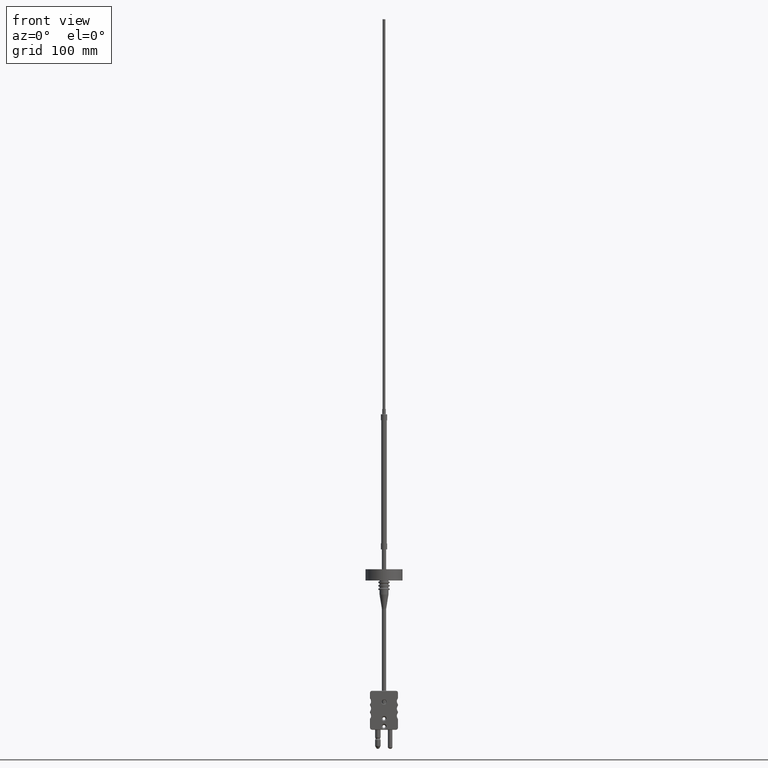
[diagram: clean part render]
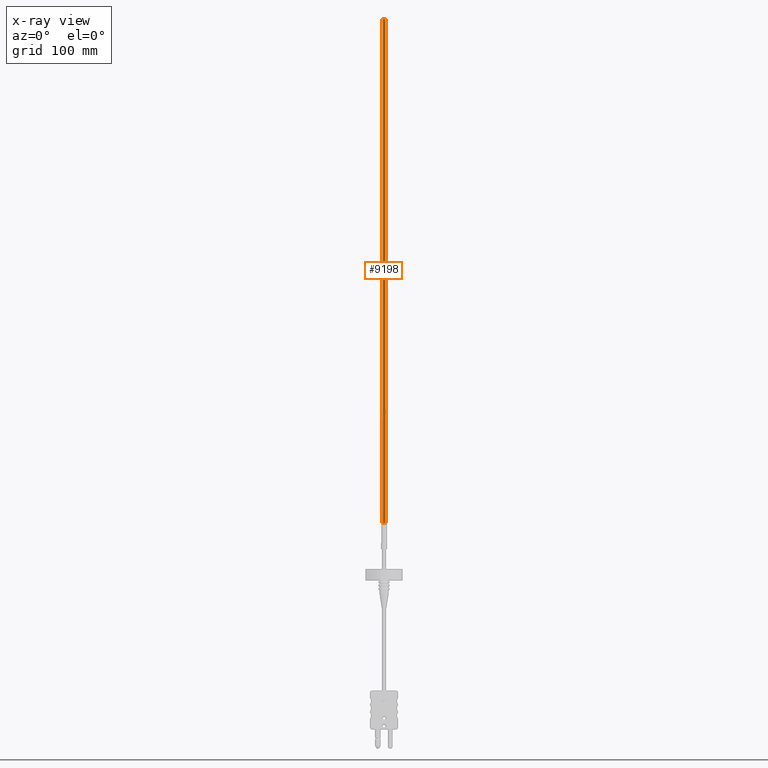
[diagram: x-ray — body ghosted, one internal face saturated and labeled with its STEP entity id]
A machine part, front view, then the same camera in x-ray: the body is ghosted and one INTERNAL B-rep face — a face not visible from any outside direction — is saturated and labeled: STEP entity #9198.
In plain terms, the highlighted cylindrical surface (edge-blend (fillet) strip) has radius 1.25 mm, axis along (-0, -0, -1).
Its self-contained STEP definition (entity closure, byte-faithful):
#47 = DIRECTION ( 'NONE',  ( -0.000000000000000000, -0.000000000000000000, -1.000000000000000000 ) ) ;
#172 = CARTESIAN_POINT ( 'NONE',  ( -1.250000000000000000, 0.000000000000000000, 450.0000000000000000 ) ) ;
#470 = CARTESIAN_POINT ( 'NONE',  ( 0.000000000000000000, 0.000000000000000000, 450.0000000000000000 ) ) ;
#576 = CYLINDRICAL_SURFACE ( 'NONE', #1987, 1.250000000000000000 ) ;
#594 = ORIENTED_EDGE ( 'NONE', *, *, #6294, .T. ) ;
#644 = CARTESIAN_POINT ( 'NONE',  ( 0.000000000000000000, 0.000000000000000000, 0.000000000000000000 ) ) ;
#1492 = AXIS2_PLACEMENT_3D ( 'NONE', #2396, #2436, #1676 ) ;
#1573 = CARTESIAN_POINT ( 'NONE',  ( -1.250000000000000000, 0.000000000000000000, 450.0000000000000000 ) ) ;
#1676 = DIRECTION ( 'NONE',  ( 1.000000000000000000, 0.000000000000000000, 0.000000000000000000 ) ) ;
#1987 = AXIS2_PLACEMENT_3D ( 'NONE', #470, #5976, #9770 ) ;
#2288 = LINE ( 'NONE', #6907, #3285 ) ;
#2391 = DIRECTION ( 'NONE',  ( -0.000000000000000000, -0.000000000000000000, -1.000000000000000000 ) ) ;
#2396 = CARTESIAN_POINT ( 'NONE',  ( 0.000000000000000000, 0.000000000000000000, 450.0000000000000000 ) ) ;
#2436 = DIRECTION ( 'NONE',  ( 0.000000000000000000, 0.000000000000000000, 1.000000000000000000 ) ) ;
#2934 = CARTESIAN_POINT ( 'NONE',  ( -1.250000000000000000, 0.000000000000000000, 0.000000000000000000 ) ) ;
#3044 = VERTEX_POINT ( 'NONE', #172 ) ;
#3285 = VECTOR ( 'NONE', #47, 1000.000000000000000 ) ;
#3435 = VERTEX_POINT ( 'NONE', #7230 ) ;
#3779 = ORIENTED_EDGE ( 'NONE', *, *, #8451, .F. ) ;
#5065 = CIRCLE ( 'NONE', #1492, 1.250000000000000000 ) ;
#5125 = FACE_OUTER_BOUND ( 'NONE', #7598, .T. ) ;
#5857 = VECTOR ( 'NONE', #2391, 1000.000000000000000 ) ;
#5950 = DIRECTION ( 'NONE',  ( 0.000000000000000000, 0.000000000000000000, 1.000000000000000000 ) ) ;
#5976 = DIRECTION ( 'NONE',  ( -0.000000000000000000, -0.000000000000000000, -1.000000000000000000 ) ) ;
#6009 = CIRCLE ( 'NONE', #9883, 1.250000000000000000 ) ;
#6294 = EDGE_CURVE ( 'NONE', #3435, #9873, #6009, .T. ) ;
#6353 = EDGE_CURVE ( 'NONE', #3044, #9873, #8520, .T. ) ;
#6479 = VERTEX_POINT ( 'NONE', #7197 ) ;
#6907 = CARTESIAN_POINT ( 'NONE',  ( 1.250000000000000000, 1.530808498934191571E-16, 450.0000000000000000 ) ) ;
#7197 = CARTESIAN_POINT ( 'NONE',  ( 1.250000000000000000, 1.530808498934191571E-16, 450.0000000000000000 ) ) ;
#7230 = CARTESIAN_POINT ( 'NONE',  ( 1.250000000000000000, 1.530808498934191571E-16, 0.000000000000000000 ) ) ;
#7234 = EDGE_CURVE ( 'NONE', #6479, #3435, #2288, .T. ) ;
#7364 = ORIENTED_EDGE ( 'NONE', *, *, #6353, .F. ) ;
#7598 = EDGE_LOOP ( 'NONE', ( #3779, #9804, #594, #7364 ) ) ;
#8270 = DIRECTION ( 'NONE',  ( 1.000000000000000000, 0.000000000000000000, 0.000000000000000000 ) ) ;
#8451 = EDGE_CURVE ( 'NONE', #6479, #3044, #5065, .T. ) ;
#8520 = LINE ( 'NONE', #1573, #5857 ) ;
#9198 = ADVANCED_FACE ( 'NONE', ( #5125 ), #576, .T. ) ;
#9770 = DIRECTION ( 'NONE',  ( -1.000000000000000000, 0.000000000000000000, 0.000000000000000000 ) ) ;
#9804 = ORIENTED_EDGE ( 'NONE', *, *, #7234, .T. ) ;
#9873 = VERTEX_POINT ( 'NONE', #2934 ) ;
#9883 = AXIS2_PLACEMENT_3D ( 'NONE', #644, #5950, #8270 ) ;